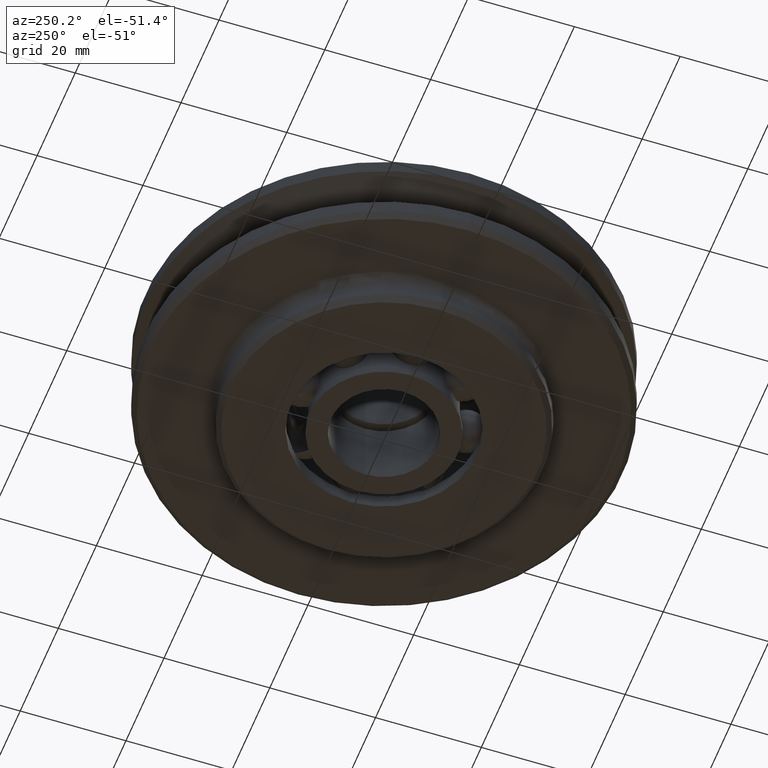
[diagram: clean part render]
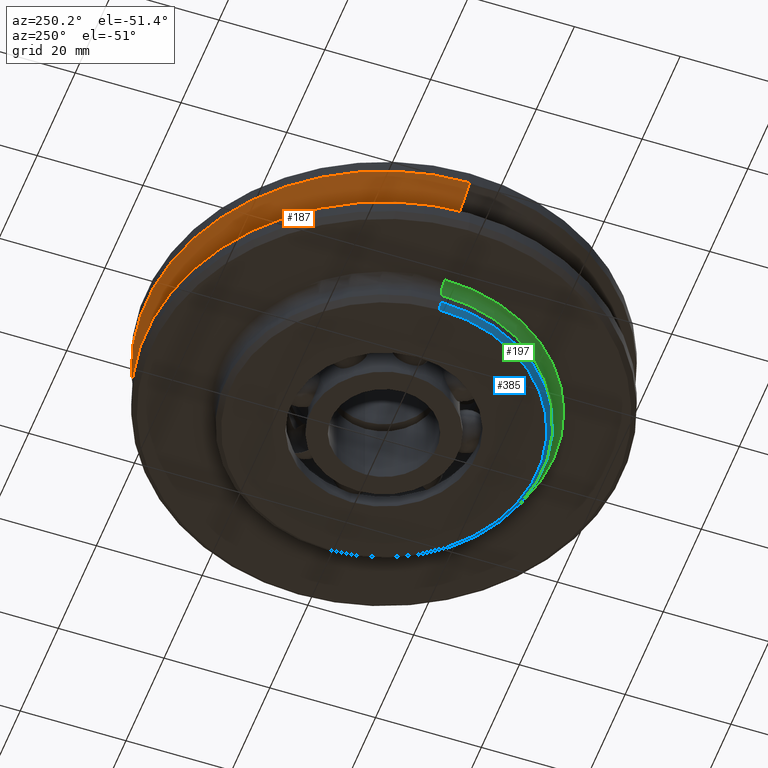
[diagram: same view with three faces highlighted in distinct colors, each labeled with its STEP entity id]
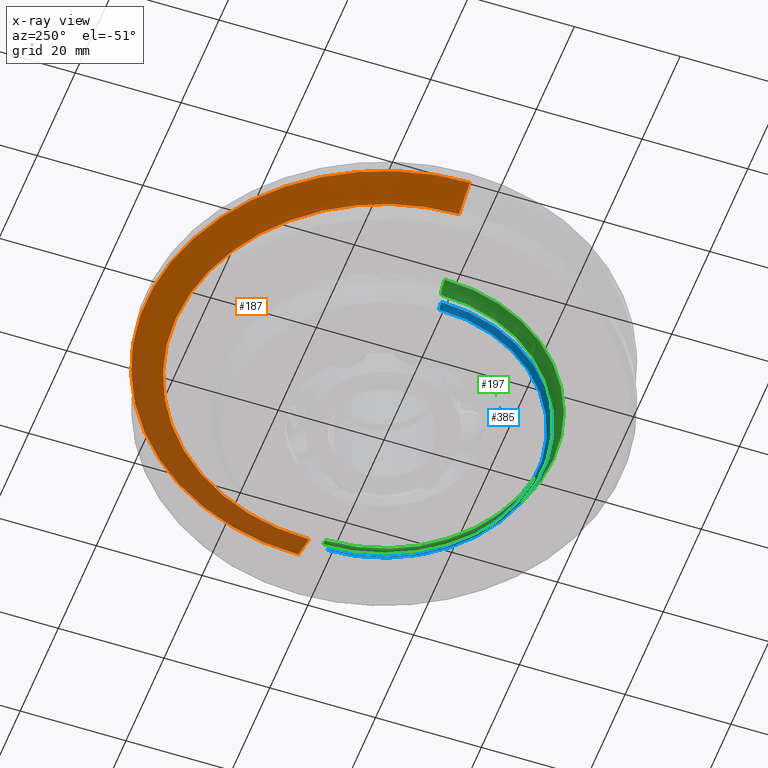
[diagram: x-ray of the same camera — body ghosted, the three highlighted faces saturated]
A machine part, auxiliary view with three faces highlighted in distinct colors.
The next image is the same camera in x-ray (body ghosted, the three faces saturated) — at least one of them is partly hidden behind the body in this view.
Their STEP definitions:

[orange] entity #187 — the highlighted conical surface has half-angle 67.5 deg.
#187=ADVANCED_FACE('',(#475),#476,.T.);
#475=FACE_OUTER_BOUND('',#885,.T.);
#476=CONICAL_SURFACE('',#886,42.179048,1.17809726845613);
#885=EDGE_LOOP('',(#1379,#1380,#1381,#1382));
#886=AXIS2_PLACEMENT_3D('',#1383,#1384,#1385);
#1379=ORIENTED_EDGE('',*,*,#2652,.F.);
#1380=ORIENTED_EDGE('',*,*,#2566,.T.);
#1381=ORIENTED_EDGE('',*,*,#2653,.F.);
#1382=ORIENTED_EDGE('',*,*,#2654,.F.);
#1383=CARTESIAN_POINT('',(0.0,0.0,3.2010115));
#1384=DIRECTION('',(-0.0,-0.0,1.0));
#1385=DIRECTION('',(1.0,0.0,0.0));
#2566=EDGE_CURVE('',#3108,#3106,#3109,.T.);
#2652=EDGE_CURVE('',#3108,#3259,#3260,.T.);
#2653=EDGE_CURVE('',#3261,#3106,#3262,.T.);
#2654=EDGE_CURVE('',#3259,#3261,#3263,.T.);
#3106=VERTEX_POINT('',#3923);
#3108=VERTEX_POINT('',#3925);
#3109=CIRCLE('',#3926,39.358096);
#3259=VERTEX_POINT('',#4908);
#3260=LINE('',#4909,#4910);
#3261=VERTEX_POINT('',#4911);
#3262=LINE('',#4912,#4913);
#3263=CIRCLE('',#4914,45.0);
#3923=CARTESIAN_POINT('',(-39.358096,4.81997662869342E-015,2.032535));
#3925=CARTESIAN_POINT('',(39.358096,0.0,2.032535));
#3926=AXIS2_PLACEMENT_3D('',#8100,#8101,#8102);
#4908=CARTESIAN_POINT('',(45.0,0.0,4.369488));
#4909=CARTESIAN_POINT('',(42.179048,-5.16544361242825E-015,3.2010115));
#4910=VECTOR('',#8208,1.0);
#4911=CARTESIAN_POINT('',(-45.0,5.51091059616309E-015,4.369488));
#4912=CARTESIAN_POINT('',(-42.179048,5.16544361242826E-015,3.2010115));
#4913=VECTOR('',#8209,1.0);
#4914=AXIS2_PLACEMENT_3D('',#8210,#8211,#8212);
#8100=CARTESIAN_POINT('',(0.0,0.0,2.032535));
#8101=DIRECTION('',(0.0,0.0,1.0));
#8102=DIRECTION('',(1.0,0.0,0.0));
#8208=DIRECTION('',(0.923879541450755,-1.13142612323539E-016,0.382683410783304));
#8209=DIRECTION('',(0.923879541450755,-1.13142612323539E-016,-0.382683410783304));
#8210=CARTESIAN_POINT('',(0.0,0.0,4.369488));
#8211=DIRECTION('',(0.0,0.0,1.0));
#8212=DIRECTION('',(1.0,0.0,0.0));

[blue] entity #385 — the highlighted conical surface has half-angle 45 deg.
#385=ADVANCED_FACE('',(#795),#796,.T.);
#795=FACE_OUTER_BOUND('',#1205,.T.);
#796=CONICAL_SURFACE('',#1206,29.5,0.785398163397448);
#1205=EDGE_LOOP('',(#2491,#2492,#2493,#2494));
#1206=AXIS2_PLACEMENT_3D('',#2495,#2496,#2497);
#2491=ORIENTED_EDGE('',*,*,#2683,.T.);
#2492=ORIENTED_EDGE('',*,*,#3088,.F.);
#2493=ORIENTED_EDGE('',*,*,#2685,.T.);
#2494=ORIENTED_EDGE('',*,*,#3086,.T.);
#2495=CARTESIAN_POINT('',(0.0,0.0,-12.5));
#2496=DIRECTION('',(-0.0,-0.0,1.0));
#2497=DIRECTION('',(1.0,0.0,0.0));
#2683=EDGE_CURVE('',#3306,#3299,#3307,.T.);
#2685=EDGE_CURVE('',#3301,#3308,#3310,.T.);
#3086=EDGE_CURVE('',#3308,#3306,#3903,.T.);
#3088=EDGE_CURVE('',#3301,#3299,#3905,.T.);
#3299=VERTEX_POINT('',#4956);
#3301=VERTEX_POINT('',#4959);
#3306=VERTEX_POINT('',#4965);
#3307=LINE('',#4966,#4967);
#3308=VERTEX_POINT('',#4968);
#3310=LINE('',#4970,#4971);
#3903=CIRCLE('',#8078,29.0);
#3905=CIRCLE('',#8080,30.0);
#4956=CARTESIAN_POINT('',(30.0,0.0,-12.0));
#4959=CARTESIAN_POINT('',(-30.0,3.67394039744206E-015,-12.0));
#4965=CARTESIAN_POINT('',(29.0,0.0,-13.0));
#4966=CARTESIAN_POINT('',(29.5,-3.61270805748469E-015,-12.5));
#4967=VECTOR('',#8260,1.0);
#4968=CARTESIAN_POINT('',(-29.0,3.55147571752732E-015,-13.0));
#4970=CARTESIAN_POINT('',(-29.5,3.61270805748469E-015,-12.5));
#4971=VECTOR('',#8264,1.0);
#8078=AXIS2_PLACEMENT_3D('',#8692,#8693,#8694);
#8080=AXIS2_PLACEMENT_3D('',#8695,#8696,#8697);
#8260=DIRECTION('',(0.707106781186548,-8.65956056235493E-017,0.707106781186548));
#8264=DIRECTION('',(0.707106781186548,-8.65956056235493E-017,-0.707106781186548));
#8692=CARTESIAN_POINT('',(0.0,0.0,-13.0));
#8693=DIRECTION('',(0.0,0.0,1.0));
#8694=DIRECTION('',(1.0,0.0,0.0));
#8695=CARTESIAN_POINT('',(0.0,0.0,-12.0));
#8696=DIRECTION('',(0.0,0.0,1.0));
#8697=DIRECTION('',(1.0,0.0,0.0));

[green] entity #197 — the highlighted toroidal blend (fillet) surface has major radius 32 mm and minor (blend) radius 2 mm.
#197=ADVANCED_FACE('',(#490),#491,.F.);
#490=FACE_OUTER_BOUND('',#900,.T.);
#491=TOROIDAL_SURFACE('',#901,32.0,2.0);
#900=EDGE_LOOP('',(#1419,#1420,#1421,#1422));
#901=AXIS2_PLACEMENT_3D('',#1423,#1424,#1425);
#1419=ORIENTED_EDGE('',*,*,#2673,.F.);
#1420=ORIENTED_EDGE('',*,*,#2674,.T.);
#1421=ORIENTED_EDGE('',*,*,#2675,.F.);
#1422=ORIENTED_EDGE('',*,*,#2676,.F.);
#1423=CARTESIAN_POINT('',(0.0,0.0,-10.0));
#1424=DIRECTION('',(0.0,0.0,1.0));
#1425=DIRECTION('',(1.0,0.0,0.0));
#2673=EDGE_CURVE('',#3290,#3291,#3292,.T.);
#2674=EDGE_CURVE('',#3290,#3293,#3294,.T.);
#2675=EDGE_CURVE('',#3295,#3293,#3296,.T.);
#2676=EDGE_CURVE('',#3291,#3295,#3297,.T.);
#3290=VERTEX_POINT('',#4947);
#3291=VERTEX_POINT('',#4948);
#3292=CIRCLE('',#4949,2.0);
#3293=VERTEX_POINT('',#4950);
#3294=CIRCLE('',#4951,30.0);
#3295=VERTEX_POINT('',#4952);
#3296=CIRCLE('',#4953,2.0);
#3297=CIRCLE('',#4954,32.0);
#4947=CARTESIAN_POINT('',(-30.0,3.67394039744206E-015,-10.0));
#4948=CARTESIAN_POINT('',(-32.0,3.91886975727153E-015,-8.0));
#4949=AXIS2_PLACEMENT_3D('',#8240,#8241,#8242);
#4950=CARTESIAN_POINT('',(30.0,0.0,-10.0));
#4951=AXIS2_PLACEMENT_3D('',#8243,#8244,#8245);
#4952=CARTESIAN_POINT('',(32.0,0.0,-8.0));
#4953=AXIS2_PLACEMENT_3D('',#8246,#8247,#8248);
#4954=AXIS2_PLACEMENT_3D('',#8249,#8250,#8251);
#8240=CARTESIAN_POINT('',(-32.0,3.91886975727153E-015,-10.0));
#8241=DIRECTION('',(-1.22464679914735E-016,-1.0,0.0));
#8242=DIRECTION('',(-1.0,1.22464679914735E-016,-0.0));
#8243=CARTESIAN_POINT('',(0.0,0.0,-10.0));
#8244=DIRECTION('',(0.0,0.0,1.0));
#8245=DIRECTION('',(1.0,0.0,0.0));
#8246=CARTESIAN_POINT('',(32.0,-3.91886975727153E-015,-10.0));
#8247=DIRECTION('',(-1.22464679914735E-016,-1.0,0.0));
#8248=DIRECTION('',(1.0,-1.22464679914735E-016,0.0));
#8249=CARTESIAN_POINT('',(0.0,0.0,-8.0));
#8250=DIRECTION('',(0.0,0.0,1.0));
#8251=DIRECTION('',(1.0,0.0,0.0));